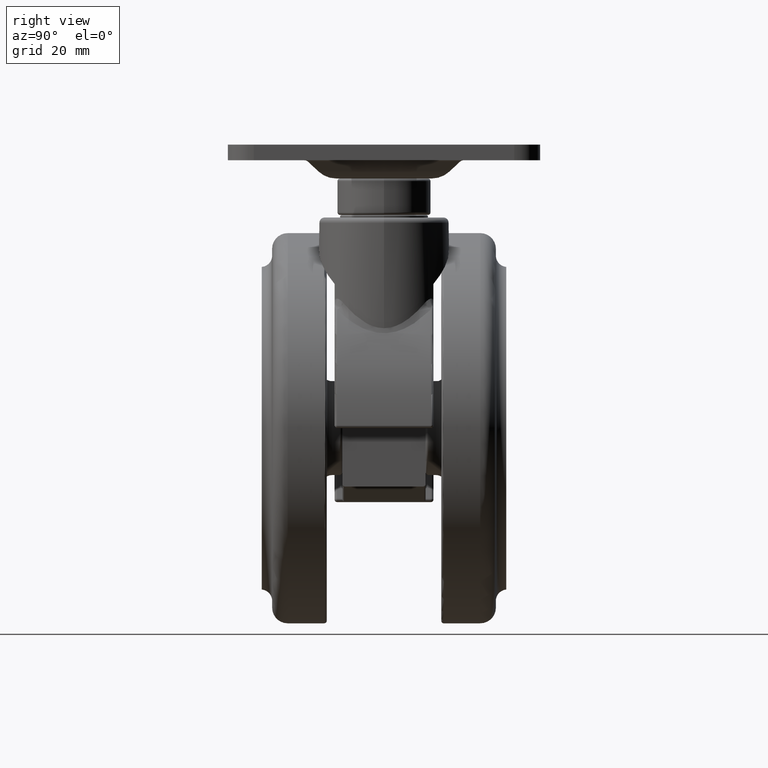
[diagram: clean part render]
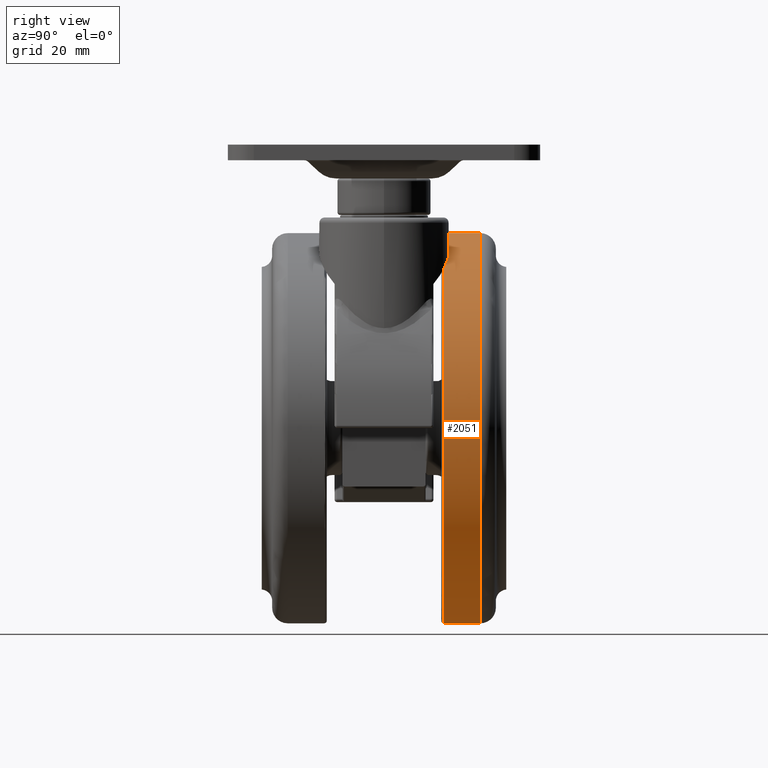
[diagram: same view with one face highlighted and labeled with its STEP entity id]
A machine part, right view. The second image highlights one B-rep face of the part: STEP entity #2051.
In plain terms, the highlighted cylindrical surface (partial cylindrical patch) has radius 37.5 mm, axis along (0, 1, 0).
Its self-contained STEP definition (entity closure, byte-faithful):
#105 = CARTESIAN_POINT ( 'NONE',  ( -20.00000000000000000, 18.50000000000000000, -78.00000000000001400 ) ) ;
#208 = CARTESIAN_POINT ( 'NONE',  ( -20.00000000000000400, 18.50000000000000000, -3.000000000000000400 ) ) ;
#440 = CYLINDRICAL_SURFACE ( 'NONE', #4313, 37.50000000000000000 ) ;
#493 = ORIENTED_EDGE ( 'NONE', *, *, #7328, .F. ) ;
#640 = DIRECTION ( 'NONE',  ( 0.0000000000000000000, 0.0000000000000000000, -1.000000000000000000 ) ) ;
#920 = EDGE_CURVE ( 'NONE', #6059, #5571, #6273, .T. ) ;
#1385 = EDGE_CURVE ( 'NONE', #5244, #5571, #6703, .T. ) ;
#2051 = ADVANCED_FACE ( 'NONE', ( #7909 ), #440, .T. ) ;
#2149 = ORIENTED_EDGE ( 'NONE', *, *, #920, .T. ) ;
#2205 = DIRECTION ( 'NONE',  ( -1.505161159488250100E-015, -1.000000000000000000, 0.0000000000000000000 ) ) ;
#2641 = CARTESIAN_POINT ( 'NONE',  ( -19.99999999999998200, 11.50000000000000000, -3.000000000000002700 ) ) ;
#2880 = CARTESIAN_POINT ( 'NONE',  ( -20.00000000000000000, 3.010322318976494600E-014, -78.00000000000000000 ) ) ;
#2972 = VECTOR ( 'NONE', #5176, 1000.000000000000000 ) ;
#2991 = CARTESIAN_POINT ( 'NONE',  ( -20.00000000000000400, 3.010322318976495200E-014, -3.000000000000002700 ) ) ;
#3531 = DIRECTION ( 'NONE',  ( 1.505161159488250100E-015, 1.000000000000000000, 0.0000000000000000000 ) ) ;
#3555 = VECTOR ( 'NONE', #6410, 1000.000000000000000 ) ;
#4313 = AXIS2_PLACEMENT_3D ( 'NONE', #5637, #3531, #7040 ) ;
#4853 = DIRECTION ( 'NONE',  ( -1.505161159488250100E-015, -1.000000000000000000, 0.0000000000000000000 ) ) ;
#5176 = DIRECTION ( 'NONE',  ( 1.505161159488250100E-015, 1.000000000000000000, 0.0000000000000000000 ) ) ;
#5231 = EDGE_LOOP ( 'NONE', ( #6658, #493, #8556, #2149 ) ) ;
#5244 = VERTEX_POINT ( 'NONE', #2641 ) ;
#5433 = LINE ( 'NONE', #2880, #3555 ) ;
#5571 = VERTEX_POINT ( 'NONE', #208 ) ;
#5637 = CARTESIAN_POINT ( 'NONE',  ( -20.00000000000000000, 3.010322318976494600E-014, -40.50000000000000000 ) ) ;
#5664 = VERTEX_POINT ( 'NONE', #8113 ) ;
#5859 = CARTESIAN_POINT ( 'NONE',  ( -20.00000000000000000, 18.50000000000000000, -40.50000000000000000 ) ) ;
#6042 = EDGE_CURVE ( 'NONE', #5664, #6059, #5433, .T. ) ;
#6059 = VERTEX_POINT ( 'NONE', #105 ) ;
#6273 = CIRCLE ( 'NONE', #6475, 37.50000000000000000 ) ;
#6396 = CARTESIAN_POINT ( 'NONE',  ( -20.00000000000000000, 11.50000000000000000, -40.50000000000000000 ) ) ;
#6410 = DIRECTION ( 'NONE',  ( 1.505161159488250100E-015, 1.000000000000000000, 0.0000000000000000000 ) ) ;
#6475 = AXIS2_PLACEMENT_3D ( 'NONE', #5859, #4853, #640 ) ;
#6658 = ORIENTED_EDGE ( 'NONE', *, *, #1385, .F. ) ;
#6703 = LINE ( 'NONE', #2991, #2972 ) ;
#6825 = CIRCLE ( 'NONE', #8985, 37.50000000000000000 ) ;
#7040 = DIRECTION ( 'NONE',  ( 0.0000000000000000000, 0.0000000000000000000, -1.000000000000000000 ) ) ;
#7098 = DIRECTION ( 'NONE',  ( 0.0000000000000000000, 0.0000000000000000000, -1.000000000000000000 ) ) ;
#7328 = EDGE_CURVE ( 'NONE', #5664, #5244, #6825, .T. ) ;
#7909 = FACE_OUTER_BOUND ( 'NONE', #5231, .T. ) ;
#8113 = CARTESIAN_POINT ( 'NONE',  ( -20.00000000000000000, 11.50000000000000000, -78.00000000000000000 ) ) ;
#8556 = ORIENTED_EDGE ( 'NONE', *, *, #6042, .T. ) ;
#8985 = AXIS2_PLACEMENT_3D ( 'NONE', #6396, #2205, #7098 ) ;